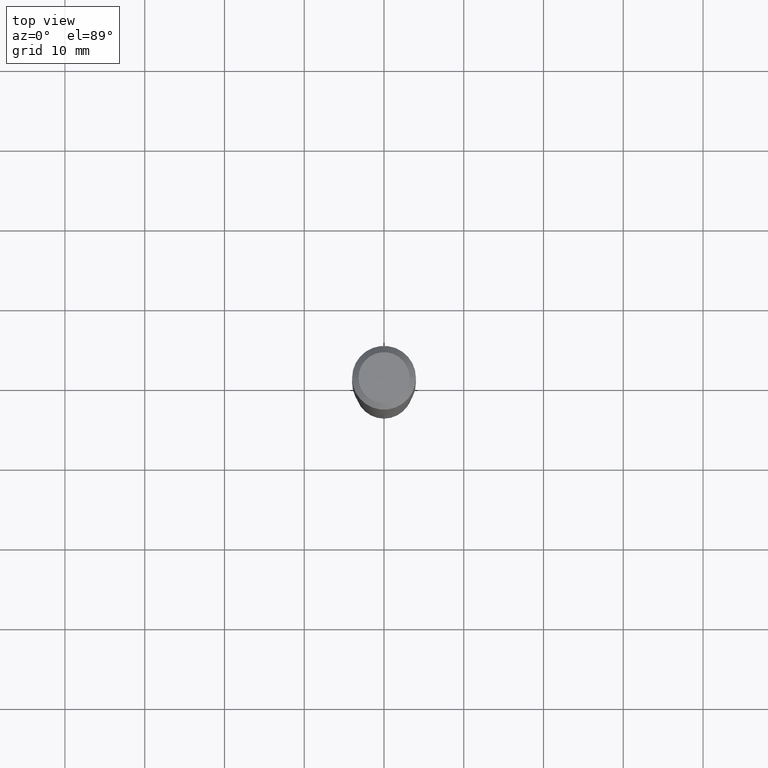
[diagram: clean part render]
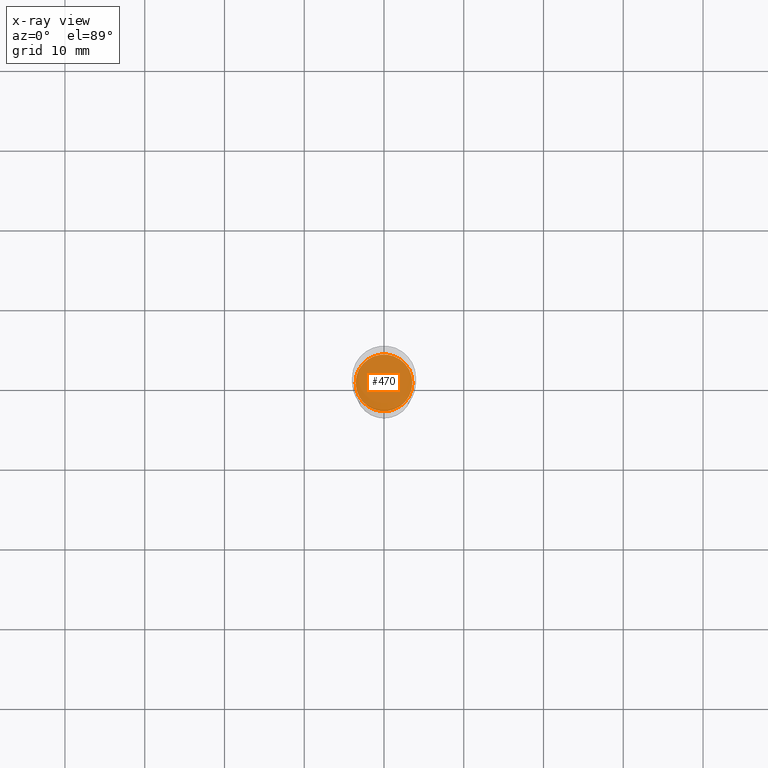
[diagram: x-ray — body ghosted, one internal face saturated and labeled with its STEP entity id]
A machine part, top view, then the same camera in x-ray: the body is ghosted and one INTERNAL B-rep face — a face not visible from any outside direction — is saturated and labeled: STEP entity #470.
In plain terms, the highlighted planar face has unit normal (-0, 0, 1).
Its self-contained STEP definition (entity closure, byte-faithful):
#24 = DIRECTION ( 'NONE',  ( 1.000000000000000000, -6.982962677686265922E-15, 4.876176775795935793E-29 ) ) ;
#74 = CARTESIAN_POINT ( 'NONE',  ( 0.1401000000000000023, -6.202965746588731027E-15, -1.496400000000000396 ) ) ;
#103 = DIRECTION ( 'NONE',  ( -2.438088387897960049E-29, 3.491481338843145188E-15, 1.000000000000000000 ) ) ;
#121 = CARTESIAN_POINT ( 'NONE',  ( -0.1401000000000000023, -4.226533075470872562E-15, -1.496400000000000396 ) ) ;
#132 = CARTESIAN_POINT ( 'NONE',  ( 3.659399521575439863E-29, -5.224652675444884140E-15, -1.496400000000000396 ) ) ;
#142 = PLANE ( 'NONE',  #185 ) ;
#150 = CARTESIAN_POINT ( 'NONE',  ( 3.659399521575439863E-29, -5.224652675444884140E-15, -1.496400000000000396 ) ) ;
#156 = VERTEX_POINT ( 'NONE', #121 ) ;
#177 = CIRCLE ( 'NONE', #237, 0.1401000000000000023 ) ;
#185 = AXIS2_PLACEMENT_3D ( 'NONE', #291, #103, #24 ) ;
#194 = VERTEX_POINT ( 'NONE', #74 ) ;
#200 = EDGE_CURVE ( 'NONE', #194, #156, #177, .T. ) ;
#237 = AXIS2_PLACEMENT_3D ( 'NONE', #150, #299, #460 ) ;
#291 = CARTESIAN_POINT ( 'NONE',  ( 1.621861059190474669E-29, -8.142523723067441994E-15, -1.496400000000000396 ) ) ;
#299 = DIRECTION ( 'NONE',  ( -2.445468806185136597E-29, 3.491481338843145583E-15, 1.000000000000000000 ) ) ;
#322 = DIRECTION ( 'NONE',  ( -2.445468806185136597E-29, 3.491481338843145583E-15, 1.000000000000000000 ) ) ;
#323 = EDGE_CURVE ( 'NONE', #156, #194, #343, .T. ) ;
#338 = ORIENTED_EDGE ( 'NONE', *, *, #200, .F. ) ;
#343 = CIRCLE ( 'NONE', #368, 0.1401000000000000023 ) ;
#368 = AXIS2_PLACEMENT_3D ( 'NONE', #132, #322, #474 ) ;
#390 = EDGE_LOOP ( 'NONE', ( #338, #431 ) ) ;
#407 = FACE_OUTER_BOUND ( 'NONE', #390, .T. ) ;
#431 = ORIENTED_EDGE ( 'NONE', *, *, #323, .F. ) ;
#460 = DIRECTION ( 'NONE',  ( 1.000000000000000000, -6.982962677686269077E-15, 0.000000000000000000 ) ) ;
#470 = ADVANCED_FACE ( 'NONE', ( #407 ), #142, .F. ) ;
#474 = DIRECTION ( 'NONE',  ( 1.000000000000000000, -6.982962677686269077E-15, 0.000000000000000000 ) ) ;